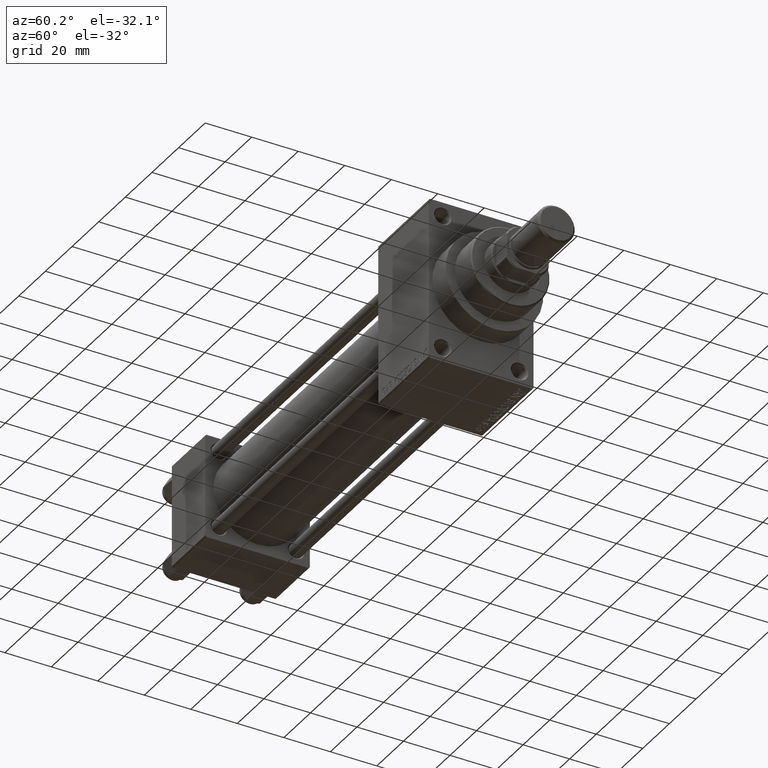
[diagram: clean part render]
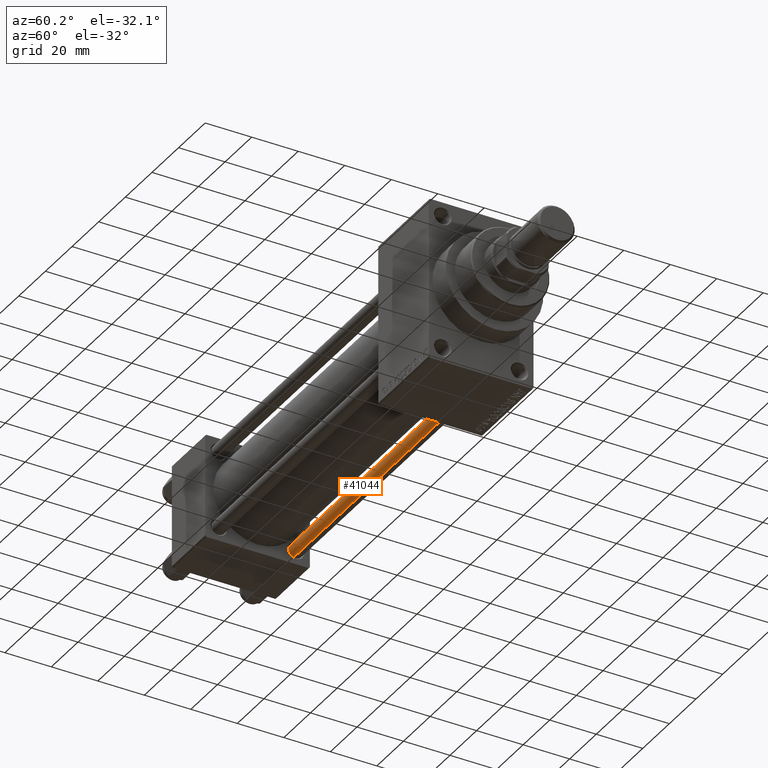
[diagram: same view with one face highlighted and labeled with its STEP entity id]
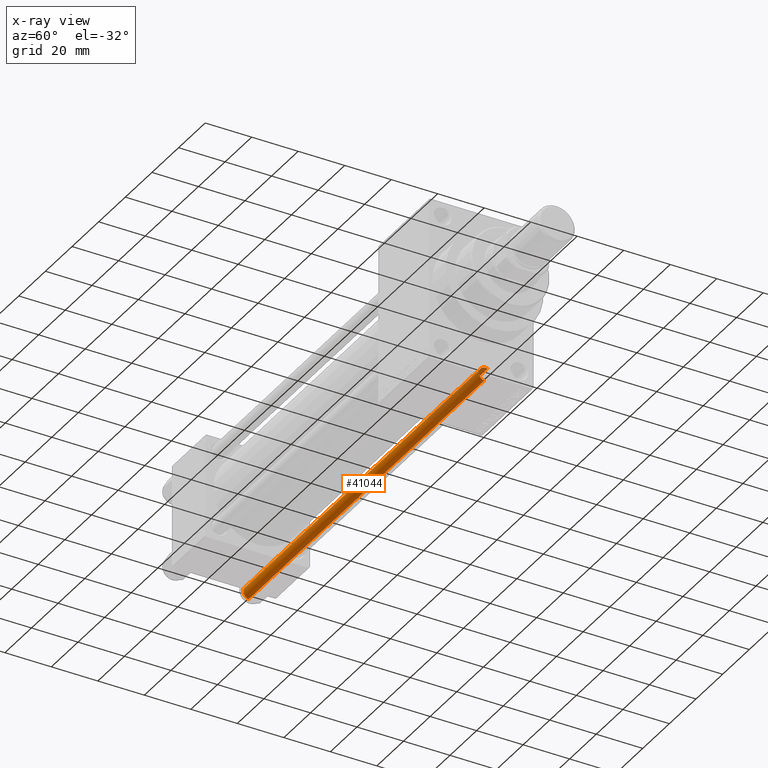
[diagram: x-ray of the same camera — body ghosted, the highlighted face saturated]
A machine part, auxiliary view. The second image highlights one B-rep face of the part: STEP entity #41044.
The next image is the same camera in x-ray: the body ghosted, the highlighted face saturated — about 15% of this face is hidden behind the body in this view.
In plain terms, the highlighted cylindrical surface (edge-blend (fillet) strip) has radius 3 mm, axis along (1, -0, 0).
Its self-contained STEP definition (entity closure, byte-faithful):
#787 = DIRECTION ( 'NONE',  ( 1.000000000000000000, 0.000000000000000000, 0.000000000000000000 ) ) ;
#1291 = EDGE_CURVE ( 'NONE', #7930, #20430, #31255, .T. ) ;
#2320 = DIRECTION ( 'NONE',  ( -1.000000000000000000, 0.000000000000000000, 0.000000000000000000 ) ) ;
#2594 = ORIENTED_EDGE ( 'NONE', *, *, #7385, .T. ) ;
#6490 = CARTESIAN_POINT ( 'NONE',  ( 3.000000000000000444, 3.673940397442060361E-16, 178.0000000000000000 ) ) ;
#7385 = EDGE_CURVE ( 'NONE', #8693, #34010, #9146, .T. ) ;
#7930 = VERTEX_POINT ( 'NONE', #32428 ) ;
#8693 = VERTEX_POINT ( 'NONE', #42778 ) ;
#9146 = CIRCLE ( 'NONE', #13764, 3.000000000000000444 ) ;
#9873 = DIRECTION ( 'NONE',  ( -0.000000000000000000, -0.000000000000000000, -1.000000000000000000 ) ) ;
#10468 = AXIS2_PLACEMENT_3D ( 'NONE', #40533, #26562, #787 ) ;
#13053 = FACE_OUTER_BOUND ( 'NONE', #28258, .T. ) ;
#13764 = AXIS2_PLACEMENT_3D ( 'NONE', #30588, #37792, #45230 ) ;
#16170 = AXIS2_PLACEMENT_3D ( 'NONE', #42907, #17016, #2320 ) ;
#16632 = LINE ( 'NONE', #46883, #18976 ) ;
#17016 = DIRECTION ( 'NONE',  ( -0.000000000000000000, -0.000000000000000000, -1.000000000000000000 ) ) ;
#17155 = CYLINDRICAL_SURFACE ( 'NONE', #16170, 3.000000000000000444 ) ;
#18976 = VECTOR ( 'NONE', #19787, 1000.000000000000000 ) ;
#19787 = DIRECTION ( 'NONE',  ( -0.000000000000000000, -0.000000000000000000, -1.000000000000000000 ) ) ;
#20430 = VERTEX_POINT ( 'NONE', #42201 ) ;
#21760 = ORIENTED_EDGE ( 'NONE', *, *, #31623, .T. ) ;
#23008 = EDGE_CURVE ( 'NONE', #7930, #34010, #24828, .T. ) ;
#24828 = LINE ( 'NONE', #6490, #33397 ) ;
#26562 = DIRECTION ( 'NONE',  ( 0.000000000000000000, 0.000000000000000000, -1.000000000000000000 ) ) ;
#28258 = EDGE_LOOP ( 'NONE', ( #42994, #33923, #21760, #2594 ) ) ;
#30588 = CARTESIAN_POINT ( 'NONE',  ( 0.000000000000000000, 0.000000000000000000, 0.5000000000000281997 ) ) ;
#31255 = CIRCLE ( 'NONE', #10468, 3.000000000000000444 ) ;
#31623 = EDGE_CURVE ( 'NONE', #20430, #8693, #16632, .T. ) ;
#32428 = CARTESIAN_POINT ( 'NONE',  ( 3.000000000000000444, 3.673940397442060361E-16, 177.5000000000000000 ) ) ;
#33397 = VECTOR ( 'NONE', #9873, 1000.000000000000000 ) ;
#33923 = ORIENTED_EDGE ( 'NONE', *, *, #1291, .T. ) ;
#34010 = VERTEX_POINT ( 'NONE', #37263 ) ;
#37263 = CARTESIAN_POINT ( 'NONE',  ( 3.000000000000000444, 3.673940397442060361E-16, 0.5000000000000281997 ) ) ;
#37792 = DIRECTION ( 'NONE',  ( -0.000000000000000000, -0.000000000000000000, 1.000000000000000000 ) ) ;
#40533 = CARTESIAN_POINT ( 'NONE',  ( 0.000000000000000000, 0.000000000000000000, 177.5000000000000000 ) ) ;
#41044 = ADVANCED_FACE ( 'NONE', ( #13053 ), #17155, .T. ) ;
#42201 = CARTESIAN_POINT ( 'NONE',  ( -3.000000000000000444, 0.000000000000000000, 177.5000000000000000 ) ) ;
#42778 = CARTESIAN_POINT ( 'NONE',  ( -3.000000000000000444, 0.000000000000000000, 0.5000000000000281997 ) ) ;
#42907 = CARTESIAN_POINT ( 'NONE',  ( 0.000000000000000000, 0.000000000000000000, 178.0000000000000000 ) ) ;
#42994 = ORIENTED_EDGE ( 'NONE', *, *, #23008, .F. ) ;
#45230 = DIRECTION ( 'NONE',  ( 1.000000000000000000, 0.000000000000000000, 0.000000000000000000 ) ) ;
#46883 = CARTESIAN_POINT ( 'NONE',  ( -3.000000000000000444, 0.000000000000000000, 178.0000000000000000 ) ) ;